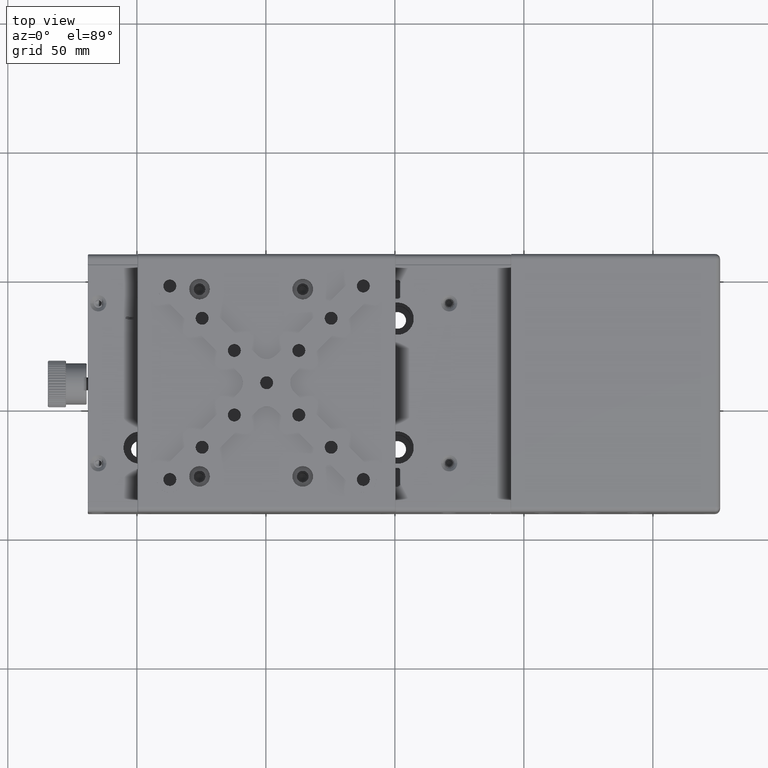
[diagram: clean part render]
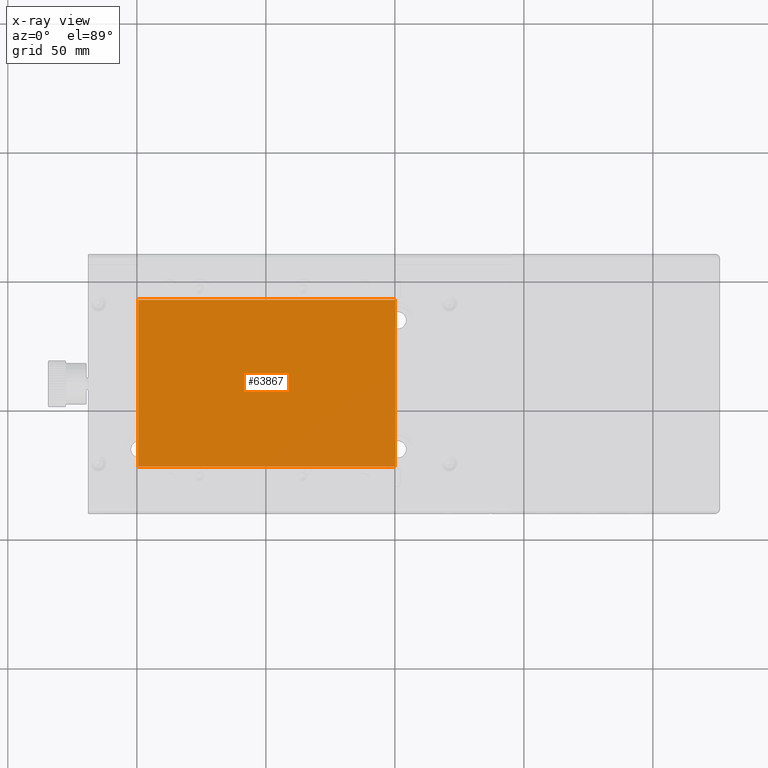
[diagram: x-ray — body ghosted, one internal face saturated and labeled with its STEP entity id]
A machine part, top view, then the same camera in x-ray: the body is ghosted and one INTERNAL B-rep face — a face not visible from any outside direction — is saturated and labeled: STEP entity #63867.
In plain terms, the highlighted planar face has unit normal (0, 0, -1).
Its self-contained STEP definition (entity closure, byte-faithful):
#351 = DIRECTION ( 'NONE',  ( -1.224646799147351975E-16, 1.000000000000000000, 0.000000000000000000 ) ) ;
#548 = VECTOR ( 'NONE', #351, 1000.000000000000000 ) ;
#2774 = VERTEX_POINT ( 'NONE', #49312 ) ;
#3393 = ORIENTED_EDGE ( 'NONE', *, *, #22557, .F. ) ;
#3461 = VECTOR ( 'NONE', #67237, 1000.000000000000000 ) ;
#7510 = DIRECTION ( 'NONE',  ( 1.387778780781445922E-16, -1.000000000000000000, 0.000000000000000000 ) ) ;
#8256 = EDGE_CURVE ( 'NONE', #43910, #2774, #33598, .T. ) ;
#9318 = PLANE ( 'NONE',  #68398 ) ;
#9729 = CARTESIAN_POINT ( 'NONE',  ( -149.5246186711819973, -22.30575141257504868, 37.49999999999864286 ) ) ;
#10039 = ORIENTED_EDGE ( 'NONE', *, *, #36341, .T. ) ;
#11619 = CARTESIAN_POINT ( 'NONE',  ( -49.72461867118209966, 42.29424858742494564, 37.49999999999864286 ) ) ;
#13732 = LINE ( 'NONE', #51421, #58743 ) ;
#14806 = FACE_OUTER_BOUND ( 'NONE', #70858, .T. ) ;
#21689 = ORIENTED_EDGE ( 'NONE', *, *, #8256, .F. ) ;
#22557 = EDGE_CURVE ( 'NONE', #39347, #54805, #22969, .T. ) ;
#22969 = LINE ( 'NONE', #51831, #3461 ) ;
#25105 = DIRECTION ( 'NONE',  ( 0.000000000000000000, 0.000000000000000000, -1.000000000000000000 ) ) ;
#26701 = CARTESIAN_POINT ( 'NONE',  ( -49.92461867118219487, -22.30575141257504868, 37.49999999999864286 ) ) ;
#31658 = CARTESIAN_POINT ( 'NONE',  ( -99.72461867118209966, 9.994248587424920061, 37.49999999999864286 ) ) ;
#33598 = LINE ( 'NONE', #11619, #65470 ) ;
#36341 = EDGE_CURVE ( 'NONE', #43910, #54805, #13732, .T. ) ;
#37313 = CARTESIAN_POINT ( 'NONE',  ( -49.92461867118219487, 42.29424858742494564, 37.49999999999864286 ) ) ;
#39347 = VERTEX_POINT ( 'NONE', #9729 ) ;
#39787 = DIRECTION ( 'NONE',  ( -1.000000000000000000, 0.000000000000000000, 0.000000000000000000 ) ) ;
#43910 = VERTEX_POINT ( 'NONE', #37313 ) ;
#47701 = ORIENTED_EDGE ( 'NONE', *, *, #71318, .T. ) ;
#49312 = CARTESIAN_POINT ( 'NONE',  ( -149.5246186711819973, 42.29424858742494564, 37.49999999999864286 ) ) ;
#51421 = CARTESIAN_POINT ( 'NONE',  ( -49.92461867118219487, -22.30575141257504868, 37.49999999999864286 ) ) ;
#51831 = CARTESIAN_POINT ( 'NONE',  ( -49.72461867118209966, -22.30575141257504868, 37.49999999999864286 ) ) ;
#54805 = VERTEX_POINT ( 'NONE', #26701 ) ;
#56686 = CARTESIAN_POINT ( 'NONE',  ( -149.5246186711819973, 42.29424858742494564, 37.49999999999864286 ) ) ;
#58743 = VECTOR ( 'NONE', #7510, 1000.000000000000000 ) ;
#63867 = ADVANCED_FACE ( 'NONE', ( #14806 ), #9318, .T. ) ;
#65470 = VECTOR ( 'NONE', #39787, 1000.000000000000000 ) ;
#67237 = DIRECTION ( 'NONE',  ( 1.000000000000000000, 0.000000000000000000, 0.000000000000000000 ) ) ;
#68398 = AXIS2_PLACEMENT_3D ( 'NONE', #31658, #25105, #70790 ) ;
#70790 = DIRECTION ( 'NONE',  ( 0.000000000000000000, -1.000000000000000000, 0.000000000000000000 ) ) ;
#70858 = EDGE_LOOP ( 'NONE', ( #3393, #47701, #21689, #10039 ) ) ;
#71318 = EDGE_CURVE ( 'NONE', #39347, #2774, #72423, .T. ) ;
#72423 = LINE ( 'NONE', #56686, #548 ) ;